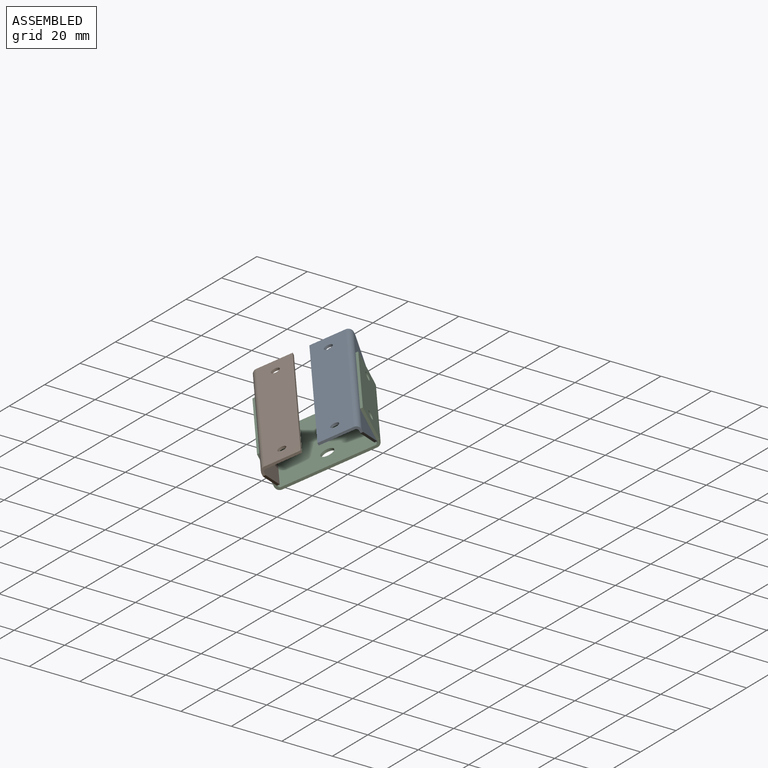
[diagram: assembled view]
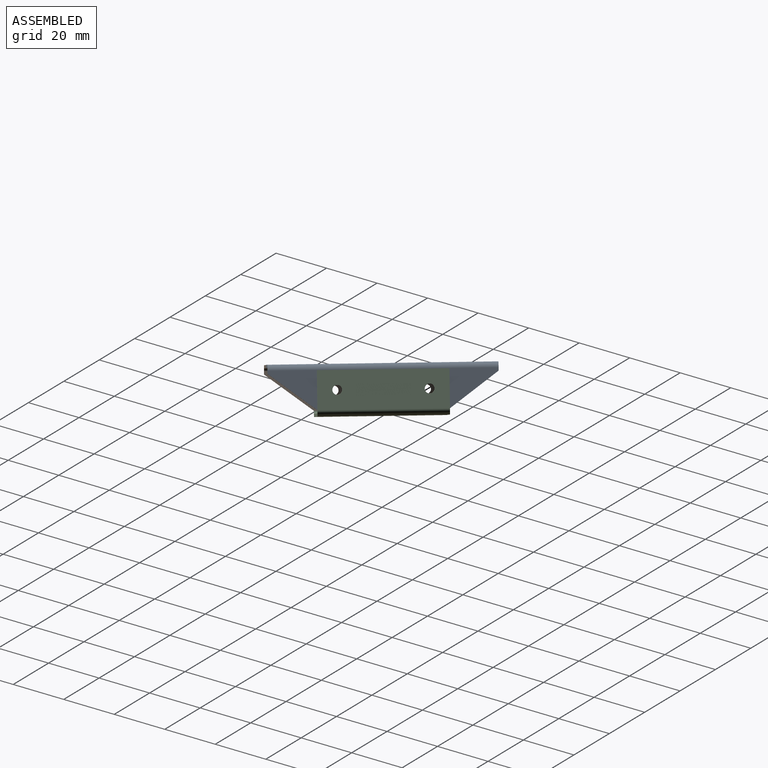
[diagram: assembled view, second angle]
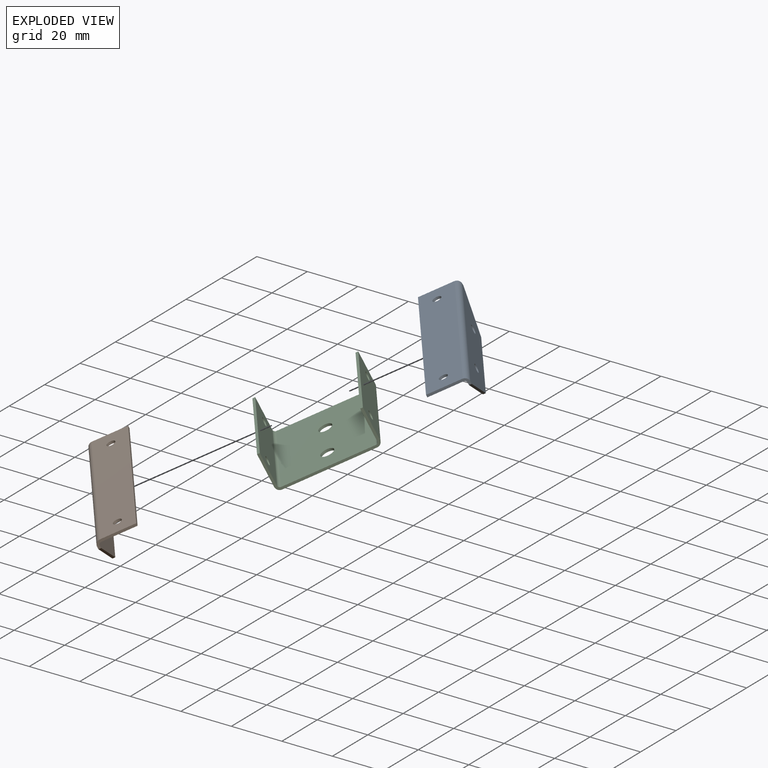
[diagram: exploded view]
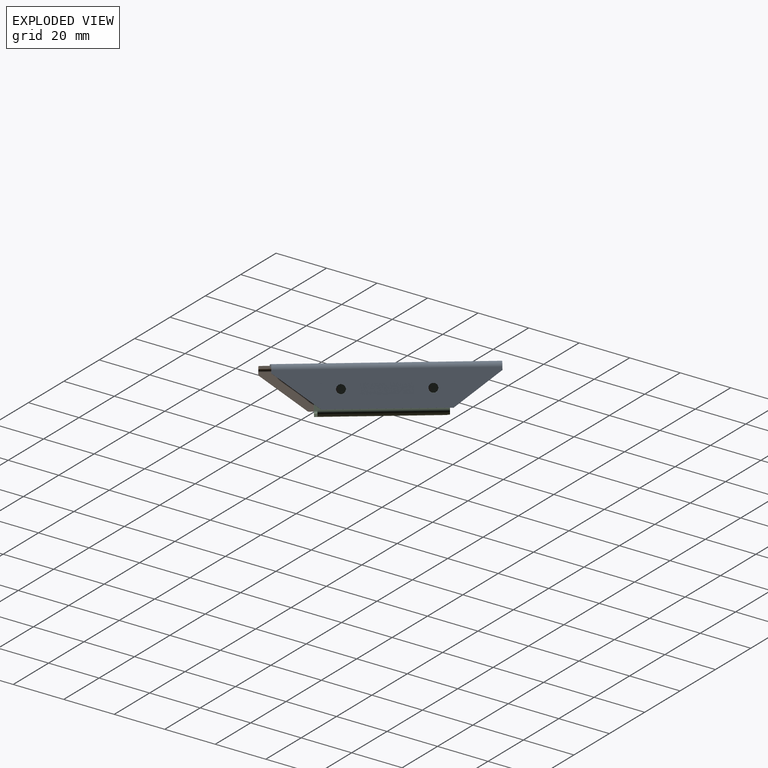
[diagram: exploded view, second angle]
FCSTD DOCUMENT  (FreeCAD 1.0R39319 (Git))
Label: MatcoParkingBrakeBracket
License: All rights reserved
LicenseURL: https://en.wikipedia.org/wiki/All_rights_reserved
objects: Sketcher::SketchObject×4, PartDesign::Pocket×4, App::Link×3, App::FeaturePython×3, PartDesign::FeaturePython×2, PartDesign::Body×2, PartDesign::Chamfer×1, Assembly::JointGroup×1, Assembly::AssemblyObject×1
note: 29 computed .brp shape members not serialized (recipe doc carries the construction recipe); baked Part::Feature solids carry a one-line shape summary decoded from their .brp

FEATURE [PartDesign::FeaturePython] BaseShape  # WARN: FeaturePython — macro-defined, semantics opaque (R4)
  Suppressed = false
  fillGaps = true
  flangeWidth = 5
  height = 15
  length = 75
  originLoc = 4
  radius = 1
  shapeType = 1
  thickness = 1
  width = 15
FEATURE [PartDesign::FeaturePython] BaseShape001  # WARN: FeaturePython — macro-defined, semantics opaque (R4)
  Suppressed = false
  fillGaps = true
  flangeWidth = 5
  height = 15
  length = 43
  originLoc = 4
  radius = 1
  shapeType = 2
  thickness = 1
  width = 38
FEATURE [Sketcher::SketchObject] Sketch
  ArcFitTolerance = 1e-06
  AttachmentSupport = -> [BaseShape]
  ExternalGeometry = -> [BaseShape]
  FullyConstrained = true
  MakeInternals = false
  MapMode = 5
  Placement = pos=(0,7.5,0) rot=(1,0,0;1.5708rad)
  sketch-geometry (3):
    g0: Circle CenterX=-15 CenterY=8.5 CenterZ=0 NormalX=0 NormalY=0 NormalZ=1 AngleXU=0 Radius=1.6
    g1: Circle CenterX=15 CenterY=8.5 CenterZ=0 NormalX=0 NormalY=0 NormalZ=1 AngleXU=0 Radius=1.6
    g2: LineSegment [constr] StartX=-37.5 StartY=8.5 StartZ=0 EndX=37.5 EndY=8.5 EndZ=0
  constraints (9):
    c: Diameter(g0) = 3.2
    c: Equal(g0,g1)
    c: Horizontal(g2)
    c: PointOnObject(g0,g2)
    c: PointOnObject(g1,g2)
    c: Symmetric(g-4,g-3,g2)
    c: Vertical(g2,g-3)
    c: DistanceX(g0,g-1) = 15
    c: DistanceX(g-1,g1) = 15
FEATURE [Sketcher::SketchObject] Sketch001
  ArcFitTolerance = 1e-06
  FullyConstrained = true
  MakeInternals = false
  MapMode = 5
  Placement = pos=(0,0,1) rot=(0,0,1;0rad)
  sketch-geometry (2):
    g0: Circle CenterX=-30 CenterY=0 CenterZ=0 NormalX=0 NormalY=0 NormalZ=1 AngleXU=0 Radius=1.6
    g1: Circle CenterX=30 CenterY=0 CenterZ=0 NormalX=0 NormalY=0 NormalZ=1 AngleXU=0 Radius=1.6
  constraints (6):
    c: Diameter(g0) = 3.2
    c: PointOnObject(g0,g-1)
    c: PointOnObject(g1,g-1)
    c: Equal(g0,g1)
    c: DistanceX(g0,g-1) = 30
    c: DistanceX(g-1,g1) = 30
FEATURE [Sketcher::SketchObject] Sketch002
  ArcFitTolerance = 1e-06
  AttachmentSupport = -> [BaseShape001]
  ExternalGeometry = -> [BaseShape001]
  FullyConstrained = true
  MakeInternals = false
  MapMode = 5
  Placement = pos=(0,19,0) rot=(0,0.707107,0.707107;3.14159rad)
  sketch-geometry (3):
    g0: LineSegment [constr] StartX=-21.5 StartY=8.5 StartZ=0 EndX=21.5 EndY=8.5 EndZ=0
    g1: Circle CenterX=-15 CenterY=8.5 CenterZ=0 NormalX=0 NormalY=0 NormalZ=1 AngleXU=0 Radius=1.6
    g2: Circle CenterX=15 CenterY=8.5 CenterZ=0 NormalX=0 NormalY=0 NormalZ=1 AngleXU=0 Radius=1.6
  constraints (9):
    c: Horizontal(g0)
    c: Symmetric(g-3,g-4,g0)
    c: Diameter(g1) = 3.2
    c: PointOnObject(g1,g0)
    c: PointOnObject(g2,g0)
    c: Equal(g1,g2)
    c: DistanceX(g1,g-1) = 15
    c: DistanceX(g-1,g2) = 15
    c: Vertical(g0,g-4)
FEATURE [PartDesign::Pocket] Pocket
  BaseFeature = -> BaseShape001
  Direction = (0,-1,2e-16)
  Length = 5
  Length2 = 5
  Profile = -> Sketch002
  ReferenceAxis = -> Sketch002 [N_Axis]
  Refine = true
  Suppressed = false
  Type = 1
FEATURE [PartDesign::Pocket] Pocket001
  BaseFeature = -> BaseShape
  Direction = (0,1,-2e-16)
  Length = 5
  Length2 = 5
  Profile = -> Sketch
  ReferenceAxis = -> Sketch [N_Axis]
  Refine = true
  Suppressed = false
  Type = 1
FEATURE [PartDesign::Pocket] Pocket002
  BaseFeature = -> Pocket001
  Direction = (0,0,-1)
  Length = 5
  Length2 = 5
  Profile = -> Sketch001
  ReferenceAxis = -> Sketch001 [N_Axis]
  Refine = true
  Suppressed = false
  Type = 1
FEATURE [Sketcher::SketchObject] Sketch003
  ArcFitTolerance = 1e-06
  AttachmentSupport = -> [Pocket]
  ExternalGeometry = -> [Pocket]
  FullyConstrained = true
  MakeInternals = false
  MapMode = 5
  Placement = pos=(0,0,1) rot=(0,0,1;0rad)
  sketch-geometry (2):
    g0: Circle CenterX=-7.8886 CenterY=0 CenterZ=0 NormalX=0 NormalY=0 NormalZ=1 AngleXU=0 Radius=2.5
    g1: Circle CenterX=11.1114 CenterY=0 CenterZ=0 NormalX=0 NormalY=0 NormalZ=1 AngleXU=0 Radius=2.5
  constraints (6):
    c: Diameter(g0) = 5
    c: PointOnObject(g0,g-1)
    c: PointOnObject(g1,g-1)
    c: Equal(g0,g1)
    c: DistanceX(g0,g1) = 19
    c: DistanceX(g1,g-3) = 10.3886
FEATURE [App::Link] Top_Bracket  label="Top Bracket001"
  LinkPlacement = pos=(0,0,0) rot=(0.401856,-0.20036,-0.893514;1.01794rad)
  LinkedObject = -> Body001
  Placement = pos=(0,0,0) rot=(0.401856,-0.20036,-0.893514;1.01794rad)
FEATURE [App::FeaturePython] GroundedJoint  # Assembly grounded joint (typed FeaturePython)
  ObjectToGround = -> Top_Bracket
  Placement = pos=(0,0,0) rot=(0.401856,-0.20036,-0.893514;1.01794rad)
FEATURE [App::Link] Left_Bracket  label="Left Bracket001"
  LinkPlacement = pos=(1.06319,0.80116,19.4288) rot=(0.43748,0.877439,0.196756;2.94602rad)
  LinkedObject = -> Body
  Placement = pos=(1.06319,0.80116,19.4288) rot=(0.43748,0.877439,0.196756;2.94602rad)
FEATURE [App::Link] Left_Bracket001  label="Right Bracket002"
  LinkPlacement = pos=(-12.658,-9.53834,11.3157) rot=(0.890486,-0.443985,0.099559;3.53577rad)
  LinkedObject = -> Body
  Placement = pos=(-12.658,-9.53834,11.3157) rot=(0.890486,-0.443985,0.099559;3.53577rad)
FEATURE [PartDesign::Chamfer] Chamfer
  Angle = 45
  Base = -> Pocket002 [Edge22,Edge12]
  BaseFeature = -> Pocket002
  ChamferType = 1
  FlipDirection = false
  Refine = true
  Size = 12
  Size2 = 16
  SupportTransform = false
  Suppressed = false
  UseAllEdges = false
FEATURE [PartDesign::Body] Body  label="Bottom Bracket"
  AllowCompound = false
  Group = -> [BaseShape,Sketch,Sketch001,Pocket001,Pocket002,Chamfer]
  Origin = -> Origin
  Tip = -> Chamfer
FEATURE [PartDesign::Pocket] Pocket003
  BaseFeature = -> Pocket
  Direction = (0,0,-1)
  Length = 5
  Length2 = 5
  Profile = -> Sketch003
  ReferenceAxis = -> Sketch003 [N_Axis]
  Refine = true
  Suppressed = false
  Type = 1
FEATURE [PartDesign::Body] Body001  label="Top Bracket"
  AllowCompound = false
  Group = -> [BaseShape001,Sketch002,Pocket,Sketch003,Pocket003]
  Origin = -> Origin001
  Placement = pos=(0,0,0) rot=(1,0,0;3.14159rad)
  Tip = -> Pocket003
FEATURE [App::FeaturePython] Joint  label="Fixed"  # Assembly joint (typed FeaturePython)
  Activated = true
  AngleMax = 0
  AngleMin = 0
  Detach1 = false
  Detach2 = false
  Distance = 0
  Distance2 = 0
  EnableAngleMax = false
  EnableAngleMin = false
  EnableLengthMax = false
  EnableLengthMin = false
  JointType = 0 (Fixed)
  LengthMax = 0
  LengthMin = 0
  Placement1 = pos=(15,8.5,8.5) rot=(1,0,0;1.5708rad)
  Placement2 = pos=(-15,18,8.5) rot=(0,0.707107,0.707107;3.14159rad)
  Reference1 = -> Assembly [Left_Bracket.Edge14,Left_Bracket.Edge14]
  Reference2 = -> Assembly [Top_Bracket.Edge40,Top_Bracket.Edge40]
FEATURE [App::FeaturePython] Joint001  label="Fixed001"  # Assembly joint (typed FeaturePython)
  Activated = true
  AngleMax = 0
  AngleMin = 0
  Detach1 = false
  Detach2 = false
  Distance = 0
  Distance2 = 0
  EnableAngleMax = false
  EnableAngleMin = false
  EnableLengthMax = false
  EnableLengthMin = false
  JointType = 0 (Fixed)
  LengthMax = 0
  LengthMin = 0
  Offset2 = pos=(0,0,0) rot=(0,0,1;3.14159rad)
  Placement1 = pos=(15,8.5,8.5) rot=(-1,0,0;4.71239rad)
  Placement2 = pos=(15,-18,8.5) rot=(1,0,0;4.71239rad)
  Reference1 = -> Assembly [Left_Bracket001.Edge14,Left_Bracket001.Edge14]
  Reference2 = -> Assembly [Top_Bracket.Edge50,Top_Bracket.Edge50]
FEATURE [Assembly::JointGroup] Joints
  Group = -> [GroundedJoint,Joint,Joint001]
FEATURE [Assembly::AssemblyObject] Assembly
  Group = -> [Joints,Top_Bracket,GroundedJoint,Left_Bracket,Left_Bracket001,Joint,Joint001]
  Origin = -> Origin002
  Type = Assembly
